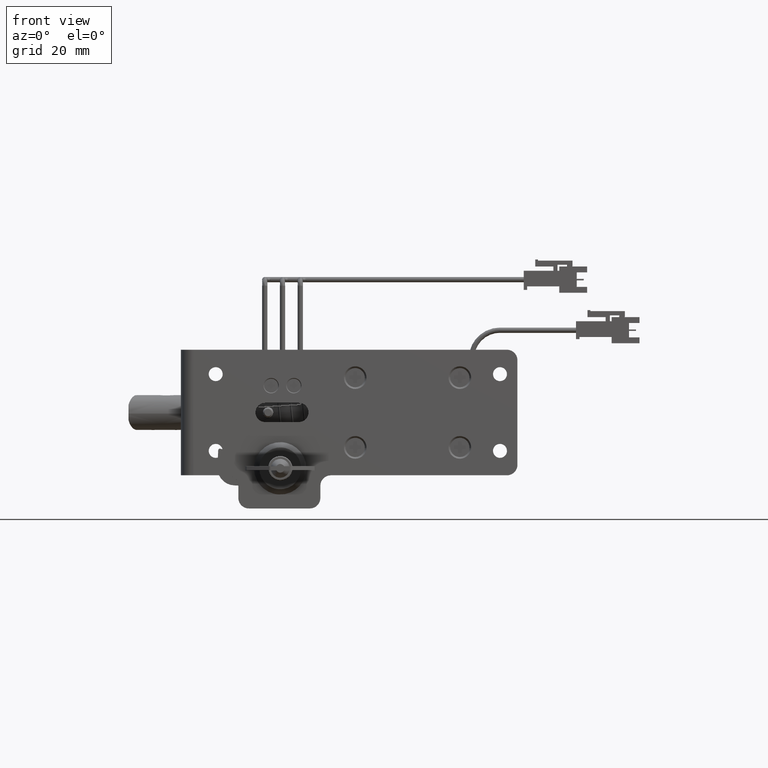
[diagram: clean part render]
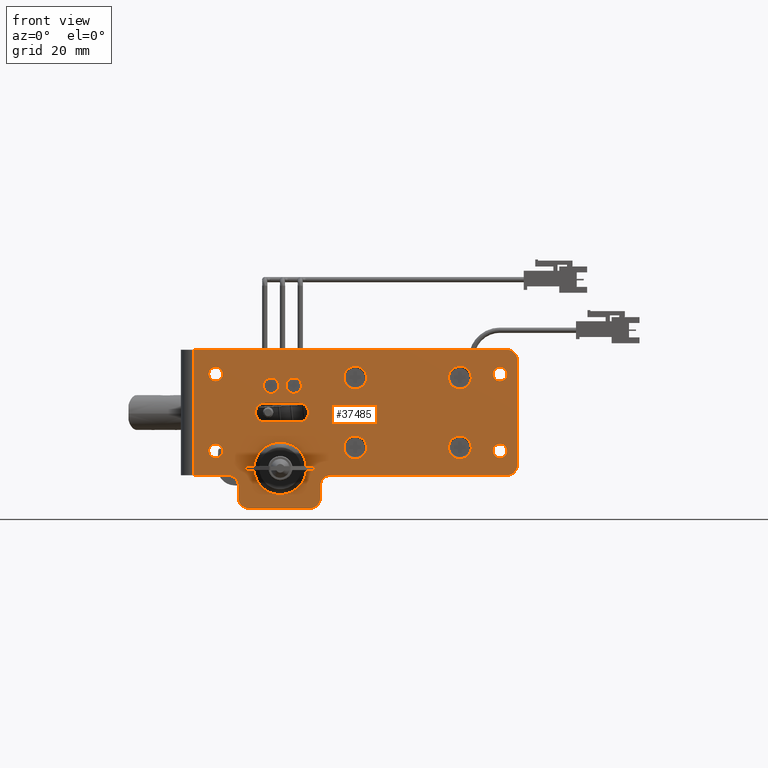
[diagram: same view with one face highlighted and labeled with its STEP entity id]
A machine part, front view. The second image highlights one B-rep face of the part: STEP entity #37485.
In plain terms, the highlighted face is a freeform B-spline surface patch.
Its self-contained STEP definition (entity closure, byte-faithful):
#32496=CARTESIAN_POINT('',(-0.404103443427767,-7.718214E-011,23.565693212445609));
#32497=VERTEX_POINT('',#32496);
#32503=CARTESIAN_POINT('',(-2.600000000000935,0.0,25.900000000003072));
#32504=VERTEX_POINT('',#32503);
#32505=CARTESIAN_POINT('',(-0.404103443427767,-7.718214E-011,23.565693212445616));
#32506=CARTESIAN_POINT('',(-0.399999999921941,-7.607299E-011,23.632783920451157));
#32507=CARTESIAN_POINT('',(-0.399999999923118,-7.489392E-011,23.699999999995420));
#32508=CARTESIAN_POINT('',(-0.399999999961636,-3.630285E-011,25.900000000000851));
#32509=CARTESIAN_POINT('',(-2.600000000000935,0.0,25.900000000003072));
#32517=(BOUNDED_CURVE()B_SPLINE_CURVE(2,(#32505,#32506,#32507,#32508,#32509),.UNSPECIFIED.,.F.,.U.)B_SPLINE_CURVE_WITH_KNOTS((3,2,3),(0.239332962196959,0.250000000000000,0.500000000000000),.UNSPECIFIED.)CURVE()GEOMETRIC_REPRESENTATION_ITEM()RATIONAL_B_SPLINE_CURVE((0.976072041576738,0.987502787850650,1.0,0.707106781186547,1.0))REPRESENTATION_ITEM(''));
#32518=EDGE_CURVE('',#32497,#32504,#32517,.T.);
#32520=CARTESIAN_POINT('',(-4.795896556574103,-7.718227E-011,23.834306787554389));
#32521=VERTEX_POINT('',#32520);
#32522=CARTESIAN_POINT('',(-2.600000000000935,0.0,25.900000000003072));
#32523=CARTESIAN_POINT('',(-4.669553346694009,-3.859113E-011,25.900000000005416));
#32524=CARTESIAN_POINT('',(-4.795896556574103,-7.718227E-011,23.834306787554389));
#32532=(BOUNDED_CURVE()B_SPLINE_CURVE(2,(#32522,#32523,#32524),.UNSPECIFIED.,.F.,.U.)B_SPLINE_CURVE_WITH_KNOTS((3,3),(0.500000000000000,0.739332962196959),.UNSPECIFIED.)CURVE()GEOMETRIC_REPRESENTATION_ITEM()RATIONAL_B_SPLINE_CURVE((1.0,0.719603993335897,0.976072041576739))REPRESENTATION_ITEM(''));
#32533=EDGE_CURVE('',#32504,#32521,#32532,.T.);
#32565=CARTESIAN_POINT('',(-2.600000000000935,0.0,21.499999999996930));
#32566=VERTEX_POINT('',#32565);
#32567=CARTESIAN_POINT('',(-4.795896556574103,-7.718227E-011,23.834306787554389));
#32568=CARTESIAN_POINT('',(-4.800000000079928,-7.607311E-011,23.767216079548831));
#32569=CARTESIAN_POINT('',(-4.800000000078753,-7.489405E-011,23.700000000004572));
#32570=CARTESIAN_POINT('',(-4.800000000040235,-3.630291E-011,21.499999999999151));
#32571=CARTESIAN_POINT('',(-2.600000000000935,0.0,21.499999999996930));
#32579=(BOUNDED_CURVE()B_SPLINE_CURVE(2,(#32567,#32568,#32569,#32570,#32571),.UNSPECIFIED.,.F.,.U.)B_SPLINE_CURVE_WITH_KNOTS((3,2,3),(0.739332962196959,0.750000000000000,1.0),.UNSPECIFIED.)CURVE()GEOMETRIC_REPRESENTATION_ITEM()RATIONAL_B_SPLINE_CURVE((0.976072041576739,0.987502787850651,1.0,0.707106781186547,1.0))REPRESENTATION_ITEM(''));
#32580=EDGE_CURVE('',#32521,#32566,#32579,.T.);
#32582=CARTESIAN_POINT('',(-2.600000000000935,0.0,21.499999999996930));
#32583=CARTESIAN_POINT('',(-0.530446653307860,-3.859107E-011,21.499999999994586));
#32584=CARTESIAN_POINT('',(-0.404103443427767,-7.718214E-011,23.565693212445609));
#32592=(BOUNDED_CURVE()B_SPLINE_CURVE(2,(#32582,#32583,#32584),.UNSPECIFIED.,.F.,.U.)B_SPLINE_CURVE_WITH_KNOTS((3,3),(0.0,0.239332962196959),.UNSPECIFIED.)CURVE()GEOMETRIC_REPRESENTATION_ITEM()RATIONAL_B_SPLINE_CURVE((1.0,0.719603993335897,0.976072041576739))REPRESENTATION_ITEM(''));
#32593=EDGE_CURVE('',#32566,#32497,#32592,.T.);
#32740=CARTESIAN_POINT('',(6.095896556572237,-7.718213E-011,23.565693212445609));
#32741=VERTEX_POINT('',#32740);
#32747=CARTESIAN_POINT('',(3.899999999999070,0.0,25.900000000003072));
#32748=VERTEX_POINT('',#32747);
#32749=CARTESIAN_POINT('',(6.095896556572237,-7.718213E-011,23.565693212445606));
#32750=CARTESIAN_POINT('',(6.100000000078062,-7.607297E-011,23.632783920451157));
#32751=CARTESIAN_POINT('',(6.100000000076885,-7.489391E-011,23.699999999995420));
#32752=CARTESIAN_POINT('',(6.100000000038368,-3.630285E-011,25.900000000000851));
#32753=CARTESIAN_POINT('',(3.899999999999070,0.0,25.900000000003072));
#32761=(BOUNDED_CURVE()B_SPLINE_CURVE(2,(#32749,#32750,#32751,#32752,#32753),.UNSPECIFIED.,.F.,.U.)B_SPLINE_CURVE_WITH_KNOTS((3,2,3),(0.239332962196959,0.250000000000000,0.500000000000000),.UNSPECIFIED.)CURVE()GEOMETRIC_REPRESENTATION_ITEM()RATIONAL_B_SPLINE_CURVE((0.976072041576738,0.987502787850650,1.0,0.707106781186547,1.0))REPRESENTATION_ITEM(''));
#32762=EDGE_CURVE('',#32741,#32748,#32761,.T.);
#32764=CARTESIAN_POINT('',(1.704103443425902,-7.718214E-011,23.834306787554389));
#32765=VERTEX_POINT('',#32764);
#32766=CARTESIAN_POINT('',(3.899999999999070,0.0,25.900000000003072));
#32767=CARTESIAN_POINT('',(1.830446653305996,-3.859107E-011,25.900000000005416));
#32768=CARTESIAN_POINT('',(1.704103443425902,-7.718214E-011,23.834306787554389));
#32776=(BOUNDED_CURVE()B_SPLINE_CURVE(2,(#32766,#32767,#32768),.UNSPECIFIED.,.F.,.U.)B_SPLINE_CURVE_WITH_KNOTS((3,3),(0.500000000000000,0.739332962196959),.UNSPECIFIED.)CURVE()GEOMETRIC_REPRESENTATION_ITEM()RATIONAL_B_SPLINE_CURVE((1.0,0.719603993335897,0.976072041576739))REPRESENTATION_ITEM(''));
#32777=EDGE_CURVE('',#32748,#32765,#32776,.T.);
#32809=CARTESIAN_POINT('',(3.899999999999070,0.0,21.499999999996930));
#32810=VERTEX_POINT('',#32809);
#32811=CARTESIAN_POINT('',(1.704103443425902,-7.718214E-011,23.834306787554389));
#32812=CARTESIAN_POINT('',(1.699999999920077,-7.607299E-011,23.767216079548831));
#32813=CARTESIAN_POINT('',(1.699999999921254,-7.489392E-011,23.700000000004572));
#32814=CARTESIAN_POINT('',(1.699999999959772,-3.630285E-011,21.499999999999151));
#32815=CARTESIAN_POINT('',(3.899999999999070,0.0,21.499999999996930));
#32823=(BOUNDED_CURVE()B_SPLINE_CURVE(2,(#32811,#32812,#32813,#32814,#32815),.UNSPECIFIED.,.F.,.U.)B_SPLINE_CURVE_WITH_KNOTS((3,2,3),(0.739332962196959,0.750000000000000,1.0),.UNSPECIFIED.)CURVE()GEOMETRIC_REPRESENTATION_ITEM()RATIONAL_B_SPLINE_CURVE((0.976072041576739,0.987502787850651,1.0,0.707106781186547,1.0))REPRESENTATION_ITEM(''));
#32824=EDGE_CURVE('',#32765,#32810,#32823,.T.);
#32826=CARTESIAN_POINT('',(3.899999999999070,0.0,21.499999999996930));
#32827=CARTESIAN_POINT('',(5.969553346692144,-3.859106E-011,21.499999999994571));
#32828=CARTESIAN_POINT('',(6.095896556572237,-7.718213E-011,23.565693212445609));
#32836=(BOUNDED_CURVE()B_SPLINE_CURVE(2,(#32826,#32827,#32828),.UNSPECIFIED.,.F.,.U.)B_SPLINE_CURVE_WITH_KNOTS((3,3),(0.0,0.239332962196959),.UNSPECIFIED.)CURVE()GEOMETRIC_REPRESENTATION_ITEM()RATIONAL_B_SPLINE_CURVE((1.0,0.719603993335897,0.976072041576739))REPRESENTATION_ITEM(''));
#32837=EDGE_CURVE('',#32810,#32741,#32836,.T.);
#32984=CARTESIAN_POINT('',(24.743938094995212,-3.609064E-010,5.801592243761517));
#32985=VERTEX_POINT('',#32984);
#32991=CARTESIAN_POINT('',(21.499999999999499,0.0,9.249999999931401));
#32992=VERTEX_POINT('',#32991);
#32993=CARTESIAN_POINT('',(24.743938094995212,-3.609064E-010,5.801592243761517));
#32994=CARTESIAN_POINT('',(24.750000000285958,-3.557200E-010,5.900703517889959));
#32995=CARTESIAN_POINT('',(24.750000000280458,-3.502066E-010,5.999999999978620));
#32996=CARTESIAN_POINT('',(24.750000000100343,-1.697534E-010,9.249999999921037));
#32997=CARTESIAN_POINT('',(21.499999999999499,0.0,9.249999999931401));
#33005=(BOUNDED_CURVE()B_SPLINE_CURVE(2,(#32993,#32994,#32995,#32996,#32997),.UNSPECIFIED.,.F.,.U.)B_SPLINE_CURVE_WITH_KNOTS((3,2,3),(0.239332962096633,0.250000000000000,0.500000000000000),.UNSPECIFIED.)CURVE()GEOMETRIC_REPRESENTATION_ITEM()RATIONAL_B_SPLINE_CURVE((0.976072041361721,0.987502787733111,1.0,0.707106781186547,1.0))REPRESENTATION_ITEM(''));
#33006=EDGE_CURVE('',#32985,#32992,#33005,.T.);
#33008=CARTESIAN_POINT('',(18.256061905003790,-3.609067E-010,6.198407756238483));
#33009=VERTEX_POINT('',#33008);
#33010=CARTESIAN_POINT('',(21.499999999999499,0.0,9.249999999931401));
#33011=CARTESIAN_POINT('',(18.442705285020359,-1.804533E-010,9.249999999942419));
#33012=CARTESIAN_POINT('',(18.256061905003790,-3.609067E-010,6.198407756238483));
#33020=(BOUNDED_CURVE()B_SPLINE_CURVE(2,(#33010,#33011,#33012),.UNSPECIFIED.,.F.,.U.)B_SPLINE_CURVE_WITH_KNOTS((3,3),(0.500000000000000,0.739332962096633),.UNSPECIFIED.)CURVE()GEOMETRIC_REPRESENTATION_ITEM()RATIONAL_B_SPLINE_CURVE((1.0,0.719603993453437,0.976072041361721))REPRESENTATION_ITEM(''));
#33021=EDGE_CURVE('',#32992,#33009,#33020,.T.);
#33053=CARTESIAN_POINT('',(21.499999999999499,0.0,2.750000000068600));
#33054=VERTEX_POINT('',#33053);
#33055=CARTESIAN_POINT('',(18.256061905003790,-3.609067E-010,6.198407756238483));
#33056=CARTESIAN_POINT('',(18.249999999713047,-3.557202E-010,6.099296482110041));
#33057=CARTESIAN_POINT('',(18.249999999718550,-3.502069E-010,6.000000000021380));
#33058=CARTESIAN_POINT('',(18.249999999898670,-1.697536E-010,2.750000000078963));
#33059=CARTESIAN_POINT('',(21.499999999999499,0.0,2.750000000068600));
#33067=(BOUNDED_CURVE()B_SPLINE_CURVE(2,(#33055,#33056,#33057,#33058,#33059),.UNSPECIFIED.,.F.,.U.)B_SPLINE_CURVE_WITH_KNOTS((3,2,3),(0.739332962096633,0.750000000000000,1.0),.UNSPECIFIED.)CURVE()GEOMETRIC_REPRESENTATION_ITEM()RATIONAL_B_SPLINE_CURVE((0.976072041361721,0.987502787733111,1.0,0.707106781186547,1.0))REPRESENTATION_ITEM(''));
#33068=EDGE_CURVE('',#33009,#33054,#33067,.T.);
#33070=CARTESIAN_POINT('',(21.499999999999499,0.0,2.750000000068600));
#33071=CARTESIAN_POINT('',(24.557294714978639,-1.804532E-010,2.750000000057584));
#33072=CARTESIAN_POINT('',(24.743938094995212,-3.609064E-010,5.801592243761517));
#33080=(BOUNDED_CURVE()B_SPLINE_CURVE(2,(#33070,#33071,#33072),.UNSPECIFIED.,.F.,.U.)B_SPLINE_CURVE_WITH_KNOTS((3,3),(0.0,0.239332962096633),.UNSPECIFIED.)CURVE()GEOMETRIC_REPRESENTATION_ITEM()RATIONAL_B_SPLINE_CURVE((1.0,0.719603993453437,0.976072041361721))REPRESENTATION_ITEM(''));
#33081=EDGE_CURVE('',#33054,#32985,#33080,.T.);
#33228=CARTESIAN_POINT('',(24.743938094995212,-3.609056E-010,25.801592243761519));
#33229=VERTEX_POINT('',#33228);
#33235=CARTESIAN_POINT('',(21.499999999999499,0.0,29.249999999931401));
#33236=VERTEX_POINT('',#33235);
#33237=CARTESIAN_POINT('',(24.743938094995205,-3.609056E-010,25.801592243761522));
#33238=CARTESIAN_POINT('',(24.750000000285954,-3.557192E-010,25.900703517889959));
#33239=CARTESIAN_POINT('',(24.750000000280451,-3.502059E-010,25.999999999978620));
#33240=CARTESIAN_POINT('',(24.750000000100343,-1.697530E-010,29.249999999921041));
#33241=CARTESIAN_POINT('',(21.499999999999499,0.0,29.249999999931401));
#33249=(BOUNDED_CURVE()B_SPLINE_CURVE(2,(#33237,#33238,#33239,#33240,#33241),.UNSPECIFIED.,.F.,.U.)B_SPLINE_CURVE_WITH_KNOTS((3,2,3),(0.239332962096633,0.250000000000000,0.500000000000000),.UNSPECIFIED.)CURVE()GEOMETRIC_REPRESENTATION_ITEM()RATIONAL_B_SPLINE_CURVE((0.976072041361721,0.987502787733111,1.0,0.707106781186547,1.0))REPRESENTATION_ITEM(''));
#33250=EDGE_CURVE('',#33229,#33236,#33249,.T.);
#33252=CARTESIAN_POINT('',(18.256061905003790,-3.609059E-010,26.198407756238488));
#33253=VERTEX_POINT('',#33252);
#33254=CARTESIAN_POINT('',(21.499999999999499,0.0,29.249999999931401));
#33255=CARTESIAN_POINT('',(18.442705285020370,-1.804529E-010,29.249999999942411));
#33256=CARTESIAN_POINT('',(18.256061905003794,-3.609059E-010,26.198407756238488));
#33264=(BOUNDED_CURVE()B_SPLINE_CURVE(2,(#33254,#33255,#33256),.UNSPECIFIED.,.F.,.U.)B_SPLINE_CURVE_WITH_KNOTS((3,3),(0.500000000000000,0.739332962096633),.UNSPECIFIED.)CURVE()GEOMETRIC_REPRESENTATION_ITEM()RATIONAL_B_SPLINE_CURVE((1.0,0.719603993453437,0.976072041361720))REPRESENTATION_ITEM(''));
#33265=EDGE_CURVE('',#33236,#33253,#33264,.T.);
#33297=CARTESIAN_POINT('',(21.499999999999499,0.0,22.750000000068599));
#33298=VERTEX_POINT('',#33297);
#33299=CARTESIAN_POINT('',(18.256061905003794,-3.609059E-010,26.198407756238488));
#33300=CARTESIAN_POINT('',(18.249999999713040,-3.557194E-010,26.099296482110045));
#33301=CARTESIAN_POINT('',(18.249999999718540,-3.502061E-010,26.000000000021380));
#33302=CARTESIAN_POINT('',(18.249999999898670,-1.697532E-010,22.750000000078963));
#33303=CARTESIAN_POINT('',(21.499999999999499,0.0,22.750000000068599));
#33311=(BOUNDED_CURVE()B_SPLINE_CURVE(2,(#33299,#33300,#33301,#33302,#33303),.UNSPECIFIED.,.F.,.U.)B_SPLINE_CURVE_WITH_KNOTS((3,2,3),(0.739332962096633,0.750000000000000,1.0),.UNSPECIFIED.)CURVE()GEOMETRIC_REPRESENTATION_ITEM()RATIONAL_B_SPLINE_CURVE((0.976072041361720,0.987502787733111,1.0,0.707106781186547,1.0))REPRESENTATION_ITEM(''));
#33312=EDGE_CURVE('',#33253,#33298,#33311,.T.);
#33314=CARTESIAN_POINT('',(21.499999999999499,0.0,22.750000000068599));
#33315=CARTESIAN_POINT('',(24.557294714978646,-1.804528E-010,22.750000000057579));
#33316=CARTESIAN_POINT('',(24.743938094995212,-3.609056E-010,25.801592243761515));
#33324=(BOUNDED_CURVE()B_SPLINE_CURVE(2,(#33314,#33315,#33316),.UNSPECIFIED.,.F.,.U.)B_SPLINE_CURVE_WITH_KNOTS((3,3),(0.0,0.239332962096633),.UNSPECIFIED.)CURVE()GEOMETRIC_REPRESENTATION_ITEM()RATIONAL_B_SPLINE_CURVE((1.0,0.719603993453436,0.976072041361721))REPRESENTATION_ITEM(''));
#33325=EDGE_CURVE('',#33298,#33229,#33324,.T.);
#33472=CARTESIAN_POINT('',(54.743938094995123,-3.609087E-010,5.801592243761517));
#33473=VERTEX_POINT('',#33472);
#33479=CARTESIAN_POINT('',(51.499999999999403,0.0,9.249999999931401));
#33480=VERTEX_POINT('',#33479);
#33481=CARTESIAN_POINT('',(54.743938094995116,-3.609087E-010,5.801592243761517));
#33482=CARTESIAN_POINT('',(54.750000000285858,-3.557222E-010,5.900703517889959));
#33483=CARTESIAN_POINT('',(54.750000000280359,-3.502089E-010,5.999999999978620));
#33484=CARTESIAN_POINT('',(54.750000000100229,-1.697545E-010,9.249999999921037));
#33485=CARTESIAN_POINT('',(51.499999999999403,0.0,9.249999999931401));
#33493=(BOUNDED_CURVE()B_SPLINE_CURVE(2,(#33481,#33482,#33483,#33484,#33485),.UNSPECIFIED.,.F.,.U.)B_SPLINE_CURVE_WITH_KNOTS((3,2,3),(0.239332962096633,0.250000000000000,0.500000000000000),.UNSPECIFIED.)CURVE()GEOMETRIC_REPRESENTATION_ITEM()RATIONAL_B_SPLINE_CURVE((0.976072041361721,0.987502787733111,1.0,0.707106781186547,1.0))REPRESENTATION_ITEM(''));
#33494=EDGE_CURVE('',#33473,#33480,#33493,.T.);
#33496=CARTESIAN_POINT('',(48.256061905003691,-3.609100E-010,6.198407756238485));
#33497=VERTEX_POINT('',#33496);
#33498=CARTESIAN_POINT('',(51.499999999999403,0.0,9.249999999931401));
#33499=CARTESIAN_POINT('',(48.442705285020274,-1.804550E-010,9.249999999942418));
#33500=CARTESIAN_POINT('',(48.256061905003691,-3.609100E-010,6.198407756238485));
#33508=(BOUNDED_CURVE()B_SPLINE_CURVE(2,(#33498,#33499,#33500),.UNSPECIFIED.,.F.,.U.)B_SPLINE_CURVE_WITH_KNOTS((3,3),(0.500000000000000,0.739332962096633),.UNSPECIFIED.)CURVE()GEOMETRIC_REPRESENTATION_ITEM()RATIONAL_B_SPLINE_CURVE((1.0,0.719603993453437,0.976072041361720))REPRESENTATION_ITEM(''));
#33509=EDGE_CURVE('',#33480,#33497,#33508,.T.);
#33541=CARTESIAN_POINT('',(51.499999999999403,0.0,2.750000000068600));
#33542=VERTEX_POINT('',#33541);
#33543=CARTESIAN_POINT('',(48.256061905003691,-3.609100E-010,6.198407756238485));
#33544=CARTESIAN_POINT('',(48.249999999712941,-3.557236E-010,6.099296482110042));
#33545=CARTESIAN_POINT('',(48.249999999718447,-3.502102E-010,6.000000000021380));
#33546=CARTESIAN_POINT('',(48.249999999898563,-1.697551E-010,2.750000000078963));
#33547=CARTESIAN_POINT('',(51.499999999999403,0.0,2.750000000068600));
#33555=(BOUNDED_CURVE()B_SPLINE_CURVE(2,(#33543,#33544,#33545,#33546,#33547),.UNSPECIFIED.,.F.,.U.)B_SPLINE_CURVE_WITH_KNOTS((3,2,3),(0.739332962096633,0.750000000000000,1.0),.UNSPECIFIED.)CURVE()GEOMETRIC_REPRESENTATION_ITEM()RATIONAL_B_SPLINE_CURVE((0.976072041361720,0.987502787733111,1.0,0.707106781186547,1.0))REPRESENTATION_ITEM(''));
#33556=EDGE_CURVE('',#33497,#33542,#33555,.T.);
#33558=CARTESIAN_POINT('',(51.499999999999403,0.0,2.750000000068600));
#33559=CARTESIAN_POINT('',(54.557294714978553,-1.804544E-010,2.750000000057584));
#33560=CARTESIAN_POINT('',(54.743938094995116,-3.609087E-010,5.801592243761517));
#33568=(BOUNDED_CURVE()B_SPLINE_CURVE(2,(#33558,#33559,#33560),.UNSPECIFIED.,.F.,.U.)B_SPLINE_CURVE_WITH_KNOTS((3,3),(0.0,0.239332962096633),.UNSPECIFIED.)CURVE()GEOMETRIC_REPRESENTATION_ITEM()RATIONAL_B_SPLINE_CURVE((1.0,0.719603993453437,0.976072041361721))REPRESENTATION_ITEM(''));
#33569=EDGE_CURVE('',#33542,#33473,#33568,.T.);
#33716=CARTESIAN_POINT('',(54.743938094995109,-3.609070E-010,25.801592243761519));
#33717=VERTEX_POINT('',#33716);
#33723=CARTESIAN_POINT('',(51.499999999999403,0.0,29.249999999931401));
#33724=VERTEX_POINT('',#33723);
#33725=CARTESIAN_POINT('',(54.743938094995109,-3.609070E-010,25.801592243761522));
#33726=CARTESIAN_POINT('',(54.750000000285851,-3.557205E-010,25.900703517889959));
#33727=CARTESIAN_POINT('',(54.750000000280352,-3.502072E-010,25.999999999978620));
#33728=CARTESIAN_POINT('',(54.750000000100229,-1.697537E-010,29.249999999921041));
#33729=CARTESIAN_POINT('',(51.499999999999403,0.0,29.249999999931401));
#33737=(BOUNDED_CURVE()B_SPLINE_CURVE(2,(#33725,#33726,#33727,#33728,#33729),.UNSPECIFIED.,.F.,.U.)B_SPLINE_CURVE_WITH_KNOTS((3,2,3),(0.239332962096633,0.250000000000000,0.500000000000000),.UNSPECIFIED.)CURVE()GEOMETRIC_REPRESENTATION_ITEM()RATIONAL_B_SPLINE_CURVE((0.976072041361721,0.987502787733111,1.0,0.707106781186547,1.0))REPRESENTATION_ITEM(''));
#33738=EDGE_CURVE('',#33717,#33724,#33737,.T.);
#33740=CARTESIAN_POINT('',(48.256061905003691,-3.609082E-010,26.198407756238488));
#33741=VERTEX_POINT('',#33740);
#33742=CARTESIAN_POINT('',(51.499999999999403,0.0,29.249999999931401));
#33743=CARTESIAN_POINT('',(48.442705285020274,-1.804541E-010,29.249999999942411));
#33744=CARTESIAN_POINT('',(48.256061905003691,-3.609082E-010,26.198407756238488));
#33752=(BOUNDED_CURVE()B_SPLINE_CURVE(2,(#33742,#33743,#33744),.UNSPECIFIED.,.F.,.U.)B_SPLINE_CURVE_WITH_KNOTS((3,3),(0.500000000000000,0.739332962096633),.UNSPECIFIED.)CURVE()GEOMETRIC_REPRESENTATION_ITEM()RATIONAL_B_SPLINE_CURVE((1.0,0.719603993453437,0.976072041361720))REPRESENTATION_ITEM(''));
#33753=EDGE_CURVE('',#33724,#33741,#33752,.T.);
#33785=CARTESIAN_POINT('',(51.499999999999403,0.0,22.750000000068599));
#33786=VERTEX_POINT('',#33785);
#33787=CARTESIAN_POINT('',(48.256061905003676,-3.609082E-010,26.198407756238485));
#33788=CARTESIAN_POINT('',(48.249999999712941,-3.557217E-010,26.099296482110049));
#33789=CARTESIAN_POINT('',(48.249999999718447,-3.502084E-010,26.000000000021380));
#33790=CARTESIAN_POINT('',(48.249999999898563,-1.697543E-010,22.750000000078963));
#33791=CARTESIAN_POINT('',(51.499999999999403,0.0,22.750000000068599));
#33799=(BOUNDED_CURVE()B_SPLINE_CURVE(2,(#33787,#33788,#33789,#33790,#33791),.UNSPECIFIED.,.F.,.U.)B_SPLINE_CURVE_WITH_KNOTS((3,2,3),(0.739332962096633,0.750000000000000,1.0),.UNSPECIFIED.)CURVE()GEOMETRIC_REPRESENTATION_ITEM()RATIONAL_B_SPLINE_CURVE((0.976072041361720,0.987502787733111,1.0,0.707106781186547,1.0))REPRESENTATION_ITEM(''));
#33800=EDGE_CURVE('',#33741,#33786,#33799,.T.);
#33802=CARTESIAN_POINT('',(51.499999999999403,0.0,22.750000000068599));
#33803=CARTESIAN_POINT('',(54.557294714978525,-1.804535E-010,22.750000000057582));
#33804=CARTESIAN_POINT('',(54.743938094995109,-3.609070E-010,25.801592243761522));
#33812=(BOUNDED_CURVE()B_SPLINE_CURVE(2,(#33802,#33803,#33804),.UNSPECIFIED.,.F.,.U.)B_SPLINE_CURVE_WITH_KNOTS((3,3),(0.0,0.239332962096633),.UNSPECIFIED.)CURVE()GEOMETRIC_REPRESENTATION_ITEM()RATIONAL_B_SPLINE_CURVE((1.0,0.719603993453437,0.976072041361720))REPRESENTATION_ITEM(''));
#33813=EDGE_CURVE('',#33786,#33717,#33812,.T.);
#34344=CARTESIAN_POINT('',(61.003730403191547,6.938894E-018,5.122097079643987));
#34345=VERTEX_POINT('',#34344);
#34351=CARTESIAN_POINT('',(63.0,0.0,2.999999999997330));
#34352=VERTEX_POINT('',#34351);
#34353=CARTESIAN_POINT('',(61.003730403191547,0.0,5.122097079643987));
#34354=CARTESIAN_POINT('',(61.0,0.0,5.061105526883787));
#34355=CARTESIAN_POINT('',(61.0,0.0,4.999999999997330));
#34356=CARTESIAN_POINT('',(60.999999999999993,0.0,2.999999999997331));
#34357=CARTESIAN_POINT('',(63.0,0.0,2.999999999997330));
#34365=(BOUNDED_CURVE()B_SPLINE_CURVE(2,(#34353,#34354,#34355,#34356,#34357),.UNSPECIFIED.,.F.,.U.)B_SPLINE_CURVE_WITH_KNOTS((3,2,3),(0.239332962192101,0.250000000000000,0.500000000000000),.UNSPECIFIED.)CURVE()GEOMETRIC_REPRESENTATION_ITEM()RATIONAL_B_SPLINE_CURVE((0.976072041566326,0.987502787844958,1.0,0.707106781186548,1.0))REPRESENTATION_ITEM(''));
#34366=EDGE_CURVE('',#34345,#34352,#34365,.T.);
#34368=CARTESIAN_POINT('',(64.996269596808446,6.938894E-018,4.877902920350674));
#34369=VERTEX_POINT('',#34368);
#34370=CARTESIAN_POINT('',(63.0,0.0,2.999999999997330));
#34371=CARTESIAN_POINT('',(64.881412133266650,0.0,2.999999999997330));
#34372=CARTESIAN_POINT('',(64.996269596808446,0.0,4.877902920350674));
#34380=(BOUNDED_CURVE()B_SPLINE_CURVE(2,(#34370,#34371,#34372),.UNSPECIFIED.,.F.,.U.)B_SPLINE_CURVE_WITH_KNOTS((3,3),(0.500000000000000,0.739332962192101),.UNSPECIFIED.)CURVE()GEOMETRIC_REPRESENTATION_ITEM()RATIONAL_B_SPLINE_CURVE((1.0,0.719603993341589,0.976072041566326))REPRESENTATION_ITEM(''));
#34381=EDGE_CURVE('',#34352,#34369,#34380,.T.);
#34455=CARTESIAN_POINT('',(63.0,0.0,6.999999999997330));
#34456=VERTEX_POINT('',#34455);
#34457=CARTESIAN_POINT('',(64.996269596808446,0.0,4.877902920350674));
#34458=CARTESIAN_POINT('',(65.0,0.0,4.938894473110873));
#34459=CARTESIAN_POINT('',(65.0,0.0,4.999999999997330));
#34460=CARTESIAN_POINT('',(65.0,0.0,6.999999999997330));
#34461=CARTESIAN_POINT('',(63.0,0.0,6.999999999997330));
#34469=(BOUNDED_CURVE()B_SPLINE_CURVE(2,(#34457,#34458,#34459,#34460,#34461),.UNSPECIFIED.,.F.,.U.)B_SPLINE_CURVE_WITH_KNOTS((3,2,3),(0.739332962192101,0.750000000000000,1.0),.UNSPECIFIED.)CURVE()GEOMETRIC_REPRESENTATION_ITEM()RATIONAL_B_SPLINE_CURVE((0.976072041566326,0.987502787844958,1.0,0.707106781186548,1.0))REPRESENTATION_ITEM(''));
#34470=EDGE_CURVE('',#34369,#34456,#34469,.T.);
#34472=CARTESIAN_POINT('',(63.0,0.0,6.999999999997330));
#34473=CARTESIAN_POINT('',(61.118587866733378,0.0,6.999999999997331));
#34474=CARTESIAN_POINT('',(61.003730403191547,0.0,5.122097079643987));
#34482=(BOUNDED_CURVE()B_SPLINE_CURVE(2,(#34472,#34473,#34474),.UNSPECIFIED.,.F.,.U.)B_SPLINE_CURVE_WITH_KNOTS((3,3),(0.0,0.239332962192101),.UNSPECIFIED.)CURVE()GEOMETRIC_REPRESENTATION_ITEM()RATIONAL_B_SPLINE_CURVE((1.0,0.719603993341590,0.976072041566326))REPRESENTATION_ITEM(''));
#34483=EDGE_CURVE('',#34456,#34345,#34482,.T.);
#34526=CARTESIAN_POINT('',(-20.496269596808450,6.938894E-018,27.122097079646661));
#34527=VERTEX_POINT('',#34526);
#34533=CARTESIAN_POINT('',(-18.500000000000000,0.0,25.0));
#34534=VERTEX_POINT('',#34533);
#34535=CARTESIAN_POINT('',(-20.496269596808450,0.0,27.122097079646657));
#34536=CARTESIAN_POINT('',(-20.500000000000004,0.0,27.061105526886458));
#34537=CARTESIAN_POINT('',(-20.500000000000000,0.0,27.0));
#34538=CARTESIAN_POINT('',(-20.499999999999993,0.0,25.0));
#34539=CARTESIAN_POINT('',(-18.500000000000000,0.0,25.0));
#34547=(BOUNDED_CURVE()B_SPLINE_CURVE(2,(#34535,#34536,#34537,#34538,#34539),.UNSPECIFIED.,.F.,.U.)B_SPLINE_CURVE_WITH_KNOTS((3,2,3),(0.239332962192101,0.250000000000000,0.500000000000000),.UNSPECIFIED.)CURVE()GEOMETRIC_REPRESENTATION_ITEM()RATIONAL_B_SPLINE_CURVE((0.976072041566326,0.987502787844958,1.0,0.707106781186548,1.0))REPRESENTATION_ITEM(''));
#34548=EDGE_CURVE('',#34527,#34534,#34547,.T.);
#34550=CARTESIAN_POINT('',(-16.503730403191550,6.938894E-018,26.877902920353339));
#34551=VERTEX_POINT('',#34550);
#34552=CARTESIAN_POINT('',(-18.500000000000000,0.0,25.0));
#34553=CARTESIAN_POINT('',(-16.618587866733375,0.0,25.000000000000004));
#34554=CARTESIAN_POINT('',(-16.503730403191550,0.0,26.877902920353336));
#34562=(BOUNDED_CURVE()B_SPLINE_CURVE(2,(#34552,#34553,#34554),.UNSPECIFIED.,.F.,.U.)B_SPLINE_CURVE_WITH_KNOTS((3,3),(0.500000000000000,0.739332962192100),.UNSPECIFIED.)CURVE()GEOMETRIC_REPRESENTATION_ITEM()RATIONAL_B_SPLINE_CURVE((1.0,0.719603993341590,0.976072041566325))REPRESENTATION_ITEM(''));
#34563=EDGE_CURVE('',#34534,#34551,#34562,.T.);
#34637=CARTESIAN_POINT('',(-18.500000000000000,0.0,29.0));
#34638=VERTEX_POINT('',#34637);
#34639=CARTESIAN_POINT('',(-16.503730403191554,0.0,26.877902920353343));
#34640=CARTESIAN_POINT('',(-16.500000000000004,0.0,26.938894473113542));
#34641=CARTESIAN_POINT('',(-16.500000000000000,0.0,27.0));
#34642=CARTESIAN_POINT('',(-16.499999999999993,0.0,29.0));
#34643=CARTESIAN_POINT('',(-18.500000000000000,0.0,29.0));
#34651=(BOUNDED_CURVE()B_SPLINE_CURVE(2,(#34639,#34640,#34641,#34642,#34643),.UNSPECIFIED.,.F.,.U.)B_SPLINE_CURVE_WITH_KNOTS((3,2,3),(0.739332962192100,0.750000000000000,1.0),.UNSPECIFIED.)CURVE()GEOMETRIC_REPRESENTATION_ITEM()RATIONAL_B_SPLINE_CURVE((0.976072041566324,0.987502787844957,1.0,0.707106781186548,1.0))REPRESENTATION_ITEM(''));
#34652=EDGE_CURVE('',#34551,#34638,#34651,.T.);
#34654=CARTESIAN_POINT('',(-18.500000000000000,0.0,29.0));
#34655=CARTESIAN_POINT('',(-20.381412133266625,0.0,29.0));
#34656=CARTESIAN_POINT('',(-20.496269596808443,0.0,27.122097079646654));
#34664=(BOUNDED_CURVE()B_SPLINE_CURVE(2,(#34654,#34655,#34656),.UNSPECIFIED.,.F.,.U.)B_SPLINE_CURVE_WITH_KNOTS((3,3),(0.0,0.239332962192100),.UNSPECIFIED.)CURVE()GEOMETRIC_REPRESENTATION_ITEM()RATIONAL_B_SPLINE_CURVE((1.0,0.719603993341590,0.976072041566325))REPRESENTATION_ITEM(''));
#34665=EDGE_CURVE('',#34638,#34527,#34664,.T.);
#34708=CARTESIAN_POINT('',(-20.496269596808450,6.938894E-018,5.122097079646656));
#34709=VERTEX_POINT('',#34708);
#34715=CARTESIAN_POINT('',(-18.500000000000000,0.0,3.0));
#34716=VERTEX_POINT('',#34715);
#34717=CARTESIAN_POINT('',(-20.496269596808439,0.0,5.122097079646655));
#34718=CARTESIAN_POINT('',(-20.499999999999996,0.0,5.061105526886457));
#34719=CARTESIAN_POINT('',(-20.500000000000000,0.0,5.0));
#34720=CARTESIAN_POINT('',(-20.499999999999993,0.0,3.0));
#34721=CARTESIAN_POINT('',(-18.500000000000000,0.0,3.0));
#34729=(BOUNDED_CURVE()B_SPLINE_CURVE(2,(#34717,#34718,#34719,#34720,#34721),.UNSPECIFIED.,.F.,.U.)B_SPLINE_CURVE_WITH_KNOTS((3,2,3),(0.239332962192101,0.250000000000000,0.500000000000000),.UNSPECIFIED.)CURVE()GEOMETRIC_REPRESENTATION_ITEM()RATIONAL_B_SPLINE_CURVE((0.976072041566326,0.987502787844958,1.0,0.707106781186548,1.0))REPRESENTATION_ITEM(''));
#34730=EDGE_CURVE('',#34709,#34716,#34729,.T.);
#34732=CARTESIAN_POINT('',(-16.503730403191550,6.938894E-018,4.877902920353344));
#34733=VERTEX_POINT('',#34732);
#34734=CARTESIAN_POINT('',(-18.500000000000000,0.0,3.0));
#34735=CARTESIAN_POINT('',(-16.618587866733371,0.0,3.000000000000001));
#34736=CARTESIAN_POINT('',(-16.503730403191554,0.0,4.877902920353345));
#34744=(BOUNDED_CURVE()B_SPLINE_CURVE(2,(#34734,#34735,#34736),.UNSPECIFIED.,.F.,.U.)B_SPLINE_CURVE_WITH_KNOTS((3,3),(0.500000000000000,0.739332962192101),.UNSPECIFIED.)CURVE()GEOMETRIC_REPRESENTATION_ITEM()RATIONAL_B_SPLINE_CURVE((1.0,0.719603993341589,0.976072041566326))REPRESENTATION_ITEM(''));
#34745=EDGE_CURVE('',#34716,#34733,#34744,.T.);
#34819=CARTESIAN_POINT('',(-18.500000000000000,0.0,7.0));
#34820=VERTEX_POINT('',#34819);
#34821=CARTESIAN_POINT('',(-16.503730403191554,0.0,4.877902920353345));
#34822=CARTESIAN_POINT('',(-16.500000000000000,0.0,4.938894473113543));
#34823=CARTESIAN_POINT('',(-16.500000000000000,0.0,5.0));
#34824=CARTESIAN_POINT('',(-16.499999999999993,0.0,6.999999999999999));
#34825=CARTESIAN_POINT('',(-18.500000000000000,0.0,7.0));
#34833=(BOUNDED_CURVE()B_SPLINE_CURVE(2,(#34821,#34822,#34823,#34824,#34825),.UNSPECIFIED.,.F.,.U.)B_SPLINE_CURVE_WITH_KNOTS((3,2,3),(0.739332962192101,0.750000000000000,1.0),.UNSPECIFIED.)CURVE()GEOMETRIC_REPRESENTATION_ITEM()RATIONAL_B_SPLINE_CURVE((0.976072041566326,0.987502787844958,1.0,0.707106781186548,1.0))REPRESENTATION_ITEM(''));
#34834=EDGE_CURVE('',#34733,#34820,#34833,.T.);
#34836=CARTESIAN_POINT('',(-18.500000000000000,0.0,7.0));
#34837=CARTESIAN_POINT('',(-20.381412133266632,0.0,7.000000000000001));
#34838=CARTESIAN_POINT('',(-20.496269596808439,0.0,5.122097079646655));
#34846=(BOUNDED_CURVE()B_SPLINE_CURVE(2,(#34836,#34837,#34838),.UNSPECIFIED.,.F.,.U.)B_SPLINE_CURVE_WITH_KNOTS((3,3),(0.0,0.239332962192101),.UNSPECIFIED.)CURVE()GEOMETRIC_REPRESENTATION_ITEM()RATIONAL_B_SPLINE_CURVE((1.0,0.719603993341589,0.976072041566326))REPRESENTATION_ITEM(''));
#34847=EDGE_CURVE('',#34820,#34709,#34846,.T.);
#34890=CARTESIAN_POINT('',(61.003730403191547,6.938894E-018,27.122097079646661));
#34891=VERTEX_POINT('',#34890);
#34897=CARTESIAN_POINT('',(63.0,0.0,25.0));
#34898=VERTEX_POINT('',#34897);
#34899=CARTESIAN_POINT('',(61.003730403191540,0.0,27.122097079646654));
#34900=CARTESIAN_POINT('',(60.999999999999993,0.0,27.061105526886465));
#34901=CARTESIAN_POINT('',(61.0,0.0,27.0));
#34902=CARTESIAN_POINT('',(60.999999999999993,0.0,25.0));
#34903=CARTESIAN_POINT('',(63.0,0.0,25.0));
#34911=(BOUNDED_CURVE()B_SPLINE_CURVE(2,(#34899,#34900,#34901,#34902,#34903),.UNSPECIFIED.,.F.,.U.)B_SPLINE_CURVE_WITH_KNOTS((3,2,3),(0.239332962192100,0.250000000000000,0.500000000000000),.UNSPECIFIED.)CURVE()GEOMETRIC_REPRESENTATION_ITEM()RATIONAL_B_SPLINE_CURVE((0.976072041566325,0.987502787844958,1.0,0.707106781186548,1.0))REPRESENTATION_ITEM(''));
#34912=EDGE_CURVE('',#34891,#34898,#34911,.T.);
#34914=CARTESIAN_POINT('',(64.996269596808446,6.938894E-018,26.877902920353339));
#34915=VERTEX_POINT('',#34914);
#34916=CARTESIAN_POINT('',(63.0,0.0,25.0));
#34917=CARTESIAN_POINT('',(64.881412133266636,0.0,24.999999999999996));
#34918=CARTESIAN_POINT('',(64.996269596808432,0.0,26.877902920353343));
#34926=(BOUNDED_CURVE()B_SPLINE_CURVE(2,(#34916,#34917,#34918),.UNSPECIFIED.,.F.,.U.)B_SPLINE_CURVE_WITH_KNOTS((3,3),(0.500000000000000,0.739332962192101),.UNSPECIFIED.)CURVE()GEOMETRIC_REPRESENTATION_ITEM()RATIONAL_B_SPLINE_CURVE((1.0,0.719603993341589,0.976072041566326))REPRESENTATION_ITEM(''));
#34927=EDGE_CURVE('',#34898,#34915,#34926,.T.);
#35001=CARTESIAN_POINT('',(63.0,0.0,29.0));
#35002=VERTEX_POINT('',#35001);
#35003=CARTESIAN_POINT('',(64.996269596808446,0.0,26.877902920353343));
#35004=CARTESIAN_POINT('',(65.0,0.0,26.938894473113542));
#35005=CARTESIAN_POINT('',(65.0,0.0,27.0));
#35006=CARTESIAN_POINT('',(65.0,0.0,29.0));
#35007=CARTESIAN_POINT('',(63.0,0.0,29.0));
#35015=(BOUNDED_CURVE()B_SPLINE_CURVE(2,(#35003,#35004,#35005,#35006,#35007),.UNSPECIFIED.,.F.,.U.)B_SPLINE_CURVE_WITH_KNOTS((3,2,3),(0.739332962192100,0.750000000000000,1.0),.UNSPECIFIED.)CURVE()GEOMETRIC_REPRESENTATION_ITEM()RATIONAL_B_SPLINE_CURVE((0.976072041566324,0.987502787844957,1.0,0.707106781186548,1.0))REPRESENTATION_ITEM(''));
#35016=EDGE_CURVE('',#34915,#35002,#35015,.T.);
#35018=CARTESIAN_POINT('',(63.0,0.0,29.0));
#35019=CARTESIAN_POINT('',(61.118587866733364,0.0,28.999999999999996));
#35020=CARTESIAN_POINT('',(61.003730403191568,0.0,27.122097079646661));
#35028=(BOUNDED_CURVE()B_SPLINE_CURVE(2,(#35018,#35019,#35020),.UNSPECIFIED.,.F.,.U.)B_SPLINE_CURVE_WITH_KNOTS((3,3),(0.0,0.239332962192100),.UNSPECIFIED.)CURVE()GEOMETRIC_REPRESENTATION_ITEM()RATIONAL_B_SPLINE_CURVE((1.0,0.719603993341590,0.976072041566325))REPRESENTATION_ITEM(''));
#35029=EDGE_CURVE('',#35002,#34891,#35028,.T.);
#36388=CARTESIAN_POINT('',(5.350000000000310,0.0,13.249999999999259));
#36389=VERTEX_POINT('',#36388);
#36390=CARTESIAN_POINT('',(5.350000000000310,0.0,18.750000000000000));
#36391=VERTEX_POINT('',#36390);
#36392=CARTESIAN_POINT('',(5.350000000000310,0.0,13.249999999999259));
#36393=CARTESIAN_POINT('',(5.642480412899934,0.0,13.249882404463049));
#36394=CARTESIAN_POINT('',(6.249911983415574,0.0,13.347703087480760));
#36395=CARTESIAN_POINT('',(7.015040474857096,0.0,13.756690616174041));
#36396=CARTESIAN_POINT('',(7.617617329231327,0.0,14.374268182459030));
#36397=CARTESIAN_POINT('',(7.974393979957164,0.0,15.061974151159291));
#36398=CARTESIAN_POINT('',(8.111355506204301,0.0,15.751206170948731));
#36399=CARTESIAN_POINT('',(8.095291084781854,0.0,16.406622531934062));
#36400=CARTESIAN_POINT('',(7.939069802751305,0.0,16.999325028146870));
#36401=CARTESIAN_POINT('',(7.587443275684939,0.0,17.657374081016691));
#36402=CARTESIAN_POINT('',(7.036515717565241,0.0,18.236285552824761));
#36403=CARTESIAN_POINT('',(6.227322437202653,0.0,18.655813764097850));
#36404=CARTESIAN_POINT('',(5.642467616476102,0.0,18.750154343007299));
#36405=CARTESIAN_POINT('',(5.350000000000310,0.0,18.750000000000000));
#36406=B_SPLINE_CURVE_WITH_KNOTS('',3,(#36392,#36393,#36394,#36395,#36396,#36397,#36398,#36399,#36400,#36401,#36402,#36403,#36404,#36405),.UNSPECIFIED.,.F.,.U.,(4,1,1,1,1,1,1,1,1,1,1,4),(0.000000756573783,0.877456233375634,1.822397360877546,2.564893980930523,3.442360136288459,4.117405678827095,4.657206248518659,5.399743069051425,5.939713370666790,6.884707828153185,7.762213072116360,8.639596594983235),.UNSPECIFIED.);
#36407=EDGE_CURVE('',#36389,#36391,#36406,.T.);
#36448=CARTESIAN_POINT('',(-4.349999999999509,0.0,13.249999999999300));
#36449=VERTEX_POINT('',#36448);
#36450=CARTESIAN_POINT('',(-4.349999999999509,0.0,13.249999999999300));
#36451=CARTESIAN_POINT('',(5.350000000000310,0.0,13.249999999999259));
#36452=QUASI_UNIFORM_CURVE('',1,(#36450,#36451),.UNSPECIFIED.,.F.,.U.);
#36453=EDGE_CURVE('',#36449,#36389,#36452,.T.);
#36489=CARTESIAN_POINT('',(-4.349999999999509,0.0,18.750000000000000));
#36490=VERTEX_POINT('',#36489);
#36491=CARTESIAN_POINT('',(-4.349999999999509,0.0,18.750000000000000));
#36492=CARTESIAN_POINT('',(-4.597458551346073,0.0,18.750082836150622));
#36493=CARTESIAN_POINT('',(-5.024859048654359,0.0,18.691891425476641));
#36494=CARTESIAN_POINT('',(-5.678750929156141,0.0,18.439729159573439));
#36495=CARTESIAN_POINT('',(-6.329761372830385,0.0,17.981549830524081));
#36496=CARTESIAN_POINT('',(-6.866007490274899,0.0,17.239706619280550));
#36497=CARTESIAN_POINT('',(-7.094230645610044,0.0,16.451812021355231));
#36498=CARTESIAN_POINT('',(-7.109620867272242,0.0,15.819034974700781));
#36499=CARTESIAN_POINT('',(-7.005844783356661,0.0,15.172423052738489));
#36500=CARTESIAN_POINT('',(-6.728228147785785,0.0,14.546296186772951));
#36501=CARTESIAN_POINT('',(-6.203458237626406,0.0,13.922688581581451));
#36502=CARTESIAN_POINT('',(-5.451970690779285,0.0,13.406957361267580));
#36503=CARTESIAN_POINT('',(-4.755050743262707,0.0,13.249371227697569));
#36504=CARTESIAN_POINT('',(-4.349999999999509,0.0,13.249999999999300));
#36505=B_SPLINE_CURVE_WITH_KNOTS('',3,(#36491,#36492,#36493,#36494,#36495,#36496,#36497,#36498,#36499,#36500,#36501,#36502,#36503,#36504),.UNSPECIFIED.,.F.,.U.,(4,1,1,1,1,1,1,1,1,1,1,4),(0.000000756575618,0.742374234182120,1.282384373033422,2.092402538304490,3.104880602540204,3.982406189757445,4.522181048461270,4.994688978941091,5.939713370667545,6.547197509682842,7.424718315661141,8.639596594983102),.UNSPECIFIED.);
#36506=EDGE_CURVE('',#36490,#36449,#36505,.T.);
#36541=CARTESIAN_POINT('',(5.350000000000310,0.0,18.750000000000000));
#36542=CARTESIAN_POINT('',(-4.349999999999509,0.0,18.750000000000000));
#36543=QUASI_UNIFORM_CURVE('',1,(#36541,#36542),.UNSPECIFIED.,.F.,.U.);
#36544=EDGE_CURVE('',#36391,#36490,#36543,.T.);
#36723=CARTESIAN_POINT('',(68.0,0.0,1.0));
#36724=VERTEX_POINT('',#36723);
#36730=CARTESIAN_POINT('',(65.0,0.0,-2.0));
#36731=VERTEX_POINT('',#36730);
#36732=CARTESIAN_POINT('',(65.0,0.0,-2.0));
#36733=CARTESIAN_POINT('',(68.000000000000014,0.0,-2.000000000000000));
#36734=CARTESIAN_POINT('',(68.0,0.0,1.0));
#36742=(BOUNDED_CURVE()B_SPLINE_CURVE(2,(#36732,#36733,#36734),.UNSPECIFIED.,.F.,.U.)CURVE()GEOMETRIC_REPRESENTATION_ITEM()QUASI_UNIFORM_CURVE()RATIONAL_B_SPLINE_CURVE((1.0,0.707106781186548,1.0))REPRESENTATION_ITEM(''));
#36743=EDGE_CURVE('',#36731,#36724,#36742,.T.);
#36784=CARTESIAN_POINT('',(-9.0,0.0,-11.499999999986800));
#36785=VERTEX_POINT('',#36784);
#36791=CARTESIAN_POINT('',(-12.0,0.0,-8.499999999986811));
#36792=VERTEX_POINT('',#36791);
#36793=CARTESIAN_POINT('',(-12.0,0.0,-8.499999999986811));
#36794=CARTESIAN_POINT('',(-12.0,0.0,-11.499999999986807));
#36795=CARTESIAN_POINT('',(-9.0,0.0,-11.499999999986811));
#36803=(BOUNDED_CURVE()B_SPLINE_CURVE(2,(#36793,#36794,#36795),.UNSPECIFIED.,.F.,.U.)CURVE()GEOMETRIC_REPRESENTATION_ITEM()QUASI_UNIFORM_CURVE()RATIONAL_B_SPLINE_CURVE((1.0,0.707106781186548,1.0))REPRESENTATION_ITEM(''));
#36804=EDGE_CURVE('',#36792,#36785,#36803,.T.);
#36845=CARTESIAN_POINT('',(11.499999999999019,0.0,-8.499999999986811));
#36846=VERTEX_POINT('',#36845);
#36852=CARTESIAN_POINT('',(8.499999999999028,0.0,-11.499999999986800));
#36853=VERTEX_POINT('',#36852);
#36854=CARTESIAN_POINT('',(8.499999999999028,0.0,-11.499999999986811));
#36855=CARTESIAN_POINT('',(11.499999999999030,0.0,-11.499999999986807));
#36856=CARTESIAN_POINT('',(11.499999999999030,0.0,-8.499999999986811));
#36864=(BOUNDED_CURVE()B_SPLINE_CURVE(2,(#36854,#36855,#36856),.UNSPECIFIED.,.F.,.U.)CURVE()GEOMETRIC_REPRESENTATION_ITEM()QUASI_UNIFORM_CURVE()RATIONAL_B_SPLINE_CURVE((1.0,0.707106781186548,1.0))REPRESENTATION_ITEM(''));
#36865=EDGE_CURVE('',#36853,#36846,#36864,.T.);
#36906=CARTESIAN_POINT('',(14.499999999999041,0.0,-2.0));
#36907=VERTEX_POINT('',#36906);
#36913=CARTESIAN_POINT('',(11.499999999999019,0.0,-5.0));
#36914=VERTEX_POINT('',#36913);
#36915=CARTESIAN_POINT('',(11.499999999999041,0.0,-5.0));
#36916=CARTESIAN_POINT('',(11.499999999999039,0.0,-2.000000000000000));
#36917=CARTESIAN_POINT('',(14.499999999999041,0.0,-2.0));
#36925=(BOUNDED_CURVE()B_SPLINE_CURVE(2,(#36915,#36916,#36917),.UNSPECIFIED.,.F.,.U.)CURVE()GEOMETRIC_REPRESENTATION_ITEM()QUASI_UNIFORM_CURVE()RATIONAL_B_SPLINE_CURVE((1.0,0.707106781186548,1.0))REPRESENTATION_ITEM(''));
#36926=EDGE_CURVE('',#36914,#36907,#36925,.T.);
#36941=CARTESIAN_POINT('',(-3.019933774109215,0.0,-5.300000000000479));
#36942=VERTEX_POINT('',#36941);
#36943=CARTESIAN_POINT('',(3.019933774109215,0.0,-5.300000000000479));
#36944=VERTEX_POINT('',#36943);
#36945=CARTESIAN_POINT('',(-3.019933774109215,0.0,-5.300000000000479));
#36946=CARTESIAN_POINT('',(3.019933774109215,0.0,-5.300000000000479));
#36947=QUASI_UNIFORM_CURVE('',1,(#36945,#36946),.UNSPECIFIED.,.F.,.U.);
#36948=EDGE_CURVE('',#36942,#36944,#36947,.T.);
#36986=CARTESIAN_POINT('',(-3.019933774107385,0.0,5.299999999999520));
#36987=VERTEX_POINT('',#36986);
#36988=CARTESIAN_POINT('',(-3.019933774107385,0.0,5.299999999999520));
#36989=CARTESIAN_POINT('',(-3.543225000316931,0.0,5.002132205249987));
#36990=CARTESIAN_POINT('',(-4.367276712306519,0.0,4.354077817299245));
#36991=CARTESIAN_POINT('',(-5.344440771289856,0.0,3.068352466817389));
#36992=CARTESIAN_POINT('',(-5.861161856492805,0.0,1.856566386665200));
#36993=CARTESIAN_POINT('',(-6.113367111196492,0.0,0.538732343739253));
#36994=CARTESIAN_POINT('',(-6.113368137757161,0.0,-0.538730842865970));
#36995=CARTESIAN_POINT('',(-5.879996083754378,0.0,-1.757684895720003));
#36996=CARTESIAN_POINT('',(-5.419774005537970,0.0,-2.915497571707883));
#36997=CARTESIAN_POINT('',(-4.495558896923042,0.0,-4.241582483034185));
#36998=CARTESIAN_POINT('',(-3.601457641965426,0.0,-4.969127229235022));
#36999=CARTESIAN_POINT('',(-3.019933774109215,0.0,-5.300000000000479));
#37000=B_SPLINE_CURVE_WITH_KNOTS('',3,(#36988,#36989,#36990,#36991,#36992,#36993,#36994,#36995,#36996,#36997,#36998,#36999),.UNSPECIFIED.,.F.,.U.,(4,1,1,1,1,1,1,1,1,4),(0.000000333728762,1.806326450163896,3.110964840656379,4.817023298469614,5.720228994588526,7.125043254000504,8.028250086594674,9.433249839307697,10.838238933582350,12.845276602993460),.UNSPECIFIED.);
#37001=EDGE_CURVE('',#36987,#36942,#37000,.T.);
#37034=CARTESIAN_POINT('',(3.019933774109215,0.0,5.299999999999520));
#37035=VERTEX_POINT('',#37034);
#37036=CARTESIAN_POINT('',(3.019933774109215,0.0,5.299999999999520));
#37037=CARTESIAN_POINT('',(-3.019933774107385,0.0,5.299999999999520));
#37038=QUASI_UNIFORM_CURVE('',1,(#37036,#37037),.UNSPECIFIED.,.F.,.U.);
#37039=EDGE_CURVE('',#37035,#36987,#37038,.T.);
#37071=CARTESIAN_POINT('',(3.019933774109215,0.0,-5.300000000000479));
#37072=CARTESIAN_POINT('',(3.426841118261610,0.0,-5.068212148262980));
#37073=CARTESIAN_POINT('',(4.241282367226649,0.0,-4.470537247785062));
#37074=CARTESIAN_POINT('',(5.165897894020596,0.0,-3.352450561860609));
#37075=CARTESIAN_POINT('',(5.857201651034814,0.0,-1.930238410208191));
#37076=CARTESIAN_POINT('',(6.155717386592714,0.0,-0.438029459821343));
#37077=CARTESIAN_POINT('',(6.060291799353912,0.0,1.006818895503064));
#37078=CARTESIAN_POINT('',(5.763035579210357,0.0,2.074587628069786));
#37079=CARTESIAN_POINT('',(5.304182746104903,0.0,3.081251737783961));
#37080=CARTESIAN_POINT('',(4.495599185934285,0.0,4.241591279912162));
#37081=CARTESIAN_POINT('',(3.601443764580148,0.0,4.969124300434253));
#37082=CARTESIAN_POINT('',(3.019933774109215,0.0,5.299999999999520));
#37083=B_SPLINE_CURVE_WITH_KNOTS('',3,(#37071,#37072,#37073,#37074,#37075,#37076,#37077,#37078,#37079,#37080,#37081,#37082),.UNSPECIFIED.,.F.,.U.,(4,1,1,1,1,1,1,1,1,4),(0.000000333728114,1.404900469904959,3.010607830750011,4.315244250543186,6.121653761992927,7.526471940527602,8.630419007901088,9.433249839306431,10.838238933581151,12.845276602992181),.UNSPECIFIED.);
#37084=EDGE_CURVE('',#36944,#37035,#37083,.T.);
#37119=CARTESIAN_POINT('',(-12.0,0.0,-5.0));
#37120=VERTEX_POINT('',#37119);
#37121=CARTESIAN_POINT('',(-12.0,0.0,-8.499999999986811));
#37122=CARTESIAN_POINT('',(-12.0,0.0,-5.0));
#37123=QUASI_UNIFORM_CURVE('',1,(#37121,#37122),.UNSPECIFIED.,.F.,.U.);
#37124=EDGE_CURVE('',#36792,#37120,#37123,.T.);
#37145=CARTESIAN_POINT('',(8.499999999999028,0.0,-11.499999999986800));
#37146=CARTESIAN_POINT('',(-9.0,0.0,-11.499999999986800));
#37147=QUASI_UNIFORM_CURVE('',1,(#37145,#37146),.UNSPECIFIED.,.F.,.U.);
#37148=EDGE_CURVE('',#36853,#36785,#37147,.T.);
#37165=CARTESIAN_POINT('',(11.499999999999019,0.0,-5.0));
#37166=CARTESIAN_POINT('',(11.499999999999019,0.0,-8.499999999986811));
#37167=QUASI_UNIFORM_CURVE('',1,(#37165,#37166),.UNSPECIFIED.,.F.,.U.);
#37168=EDGE_CURVE('',#36914,#36846,#37167,.T.);
#37179=CARTESIAN_POINT('',(65.0,0.0,-2.0));
#37180=CARTESIAN_POINT('',(14.499999999999041,0.0,-2.0));
#37181=QUASI_UNIFORM_CURVE('',1,(#37179,#37180),.UNSPECIFIED.,.F.,.U.);
#37182=EDGE_CURVE('',#36731,#36907,#37181,.T.);
#37199=CARTESIAN_POINT('',(68.0,0.0,31.0));
#37200=VERTEX_POINT('',#37199);
#37201=CARTESIAN_POINT('',(68.0,0.0,31.0));
#37202=CARTESIAN_POINT('',(68.0,0.0,1.0));
#37203=QUASI_UNIFORM_CURVE('',1,(#37201,#37202),.UNSPECIFIED.,.F.,.U.);
#37204=EDGE_CURVE('',#37200,#36724,#37203,.T.);
#37348=CARTESIAN_POINT('',(-29.540354819941779,0.0,36.272724911811508));
#37349=CARTESIAN_POINT('',(72.640357311713942,0.0,36.272724911811508));
#37350=CARTESIAN_POINT('',(-29.540354819941779,0.0,-13.772726132203420));
#37351=CARTESIAN_POINT('',(72.640357311713942,0.0,-13.772726132203420));
#37352=B_SPLINE_SURFACE_WITH_KNOTS('',1,1,((#37348,#37350),(#37349,#37351)),.UNSPECIFIED.,.F.,.F.,.U.,(2,2),(2,2),(0.0,102.180712131655700),(0.0,50.045451044014932),.UNSPECIFIED.);
#37353=CARTESIAN_POINT('',(-24.899999999999999,0.0,34.0));
#37354=VERTEX_POINT('',#37353);
#37355=CARTESIAN_POINT('',(65.0,0.0,34.0));
#37356=VERTEX_POINT('',#37355);
#37357=CARTESIAN_POINT('',(-24.899999999999999,0.0,34.0));
#37358=CARTESIAN_POINT('',(65.0,0.0,34.0));
#37359=QUASI_UNIFORM_CURVE('',1,(#37357,#37358),.UNSPECIFIED.,.F.,.U.);
#37360=EDGE_CURVE('',#37354,#37356,#37359,.T.);
#37361=ORIENTED_EDGE('',*,*,#37360,.F.);
#37362=CARTESIAN_POINT('',(-24.899999999999999,0.0,-2.0));
#37363=VERTEX_POINT('',#37362);
#37364=CARTESIAN_POINT('',(-24.899999999999999,0.0,34.0));
#37365=CARTESIAN_POINT('',(-24.899999999999999,0.0,-2.0));
#37366=QUASI_UNIFORM_CURVE('',1,(#37364,#37365),.UNSPECIFIED.,.F.,.U.);
#37367=EDGE_CURVE('',#37354,#37363,#37366,.T.);
#37368=ORIENTED_EDGE('',*,*,#37367,.T.);
#37369=CARTESIAN_POINT('',(-15.0,0.0,-2.0));
#37370=VERTEX_POINT('',#37369);
#37371=CARTESIAN_POINT('',(-15.0,0.0,-2.0));
#37372=CARTESIAN_POINT('',(-24.899999999999999,0.0,-2.0));
#37373=QUASI_UNIFORM_CURVE('',1,(#37371,#37372),.UNSPECIFIED.,.F.,.U.);
#37374=EDGE_CURVE('',#37370,#37363,#37373,.T.);
#37375=ORIENTED_EDGE('',*,*,#37374,.F.);
#37376=CARTESIAN_POINT('',(-15.0,0.0,-2.0));
#37377=CARTESIAN_POINT('',(-12.0,0.0,-2.000000000000000));
#37378=CARTESIAN_POINT('',(-12.0,0.0,-5.0));
#37386=(BOUNDED_CURVE()B_SPLINE_CURVE(2,(#37376,#37377,#37378),.UNSPECIFIED.,.F.,.U.)CURVE()GEOMETRIC_REPRESENTATION_ITEM()QUASI_UNIFORM_CURVE()RATIONAL_B_SPLINE_CURVE((1.0,0.707106781186548,1.0))REPRESENTATION_ITEM(''));
#37387=EDGE_CURVE('',#37370,#37120,#37386,.T.);
#37388=ORIENTED_EDGE('',*,*,#37387,.T.);
#37389=ORIENTED_EDGE('',*,*,#37124,.F.);
#37390=ORIENTED_EDGE('',*,*,#36804,.T.);
#37391=ORIENTED_EDGE('',*,*,#37148,.F.);
#37392=ORIENTED_EDGE('',*,*,#36865,.T.);
#37393=ORIENTED_EDGE('',*,*,#37168,.F.);
#37394=ORIENTED_EDGE('',*,*,#36926,.T.);
#37395=ORIENTED_EDGE('',*,*,#37182,.F.);
#37396=ORIENTED_EDGE('',*,*,#36743,.T.);
#37397=ORIENTED_EDGE('',*,*,#37204,.F.);
#37398=CARTESIAN_POINT('',(68.0,0.0,31.0));
#37399=CARTESIAN_POINT('',(68.000000000000014,0.0,34.000000000000007));
#37400=CARTESIAN_POINT('',(65.0,0.0,34.0));
#37408=(BOUNDED_CURVE()B_SPLINE_CURVE(2,(#37398,#37399,#37400),.UNSPECIFIED.,.F.,.U.)CURVE()GEOMETRIC_REPRESENTATION_ITEM()QUASI_UNIFORM_CURVE()RATIONAL_B_SPLINE_CURVE((1.0,0.707106781186548,1.0))REPRESENTATION_ITEM(''));
#37409=EDGE_CURVE('',#37200,#37356,#37408,.T.);
#37410=ORIENTED_EDGE('',*,*,#37409,.T.);
#37411=EDGE_LOOP('',(#37361,#37368,#37375,#37388,#37389,#37390,#37391,#37392,#37393,#37394,#37395,#37396,#37397,#37410));
#37412=FACE_OUTER_BOUND('',#37411,.T.);
#37413=ORIENTED_EDGE('',*,*,#37039,.F.);
#37414=ORIENTED_EDGE('',*,*,#37084,.F.);
#37415=ORIENTED_EDGE('',*,*,#36948,.F.);
#37416=ORIENTED_EDGE('',*,*,#37001,.F.);
#37417=EDGE_LOOP('',(#37413,#37414,#37415,#37416));
#37418=FACE_BOUND('',#37417,.T.);
#37419=ORIENTED_EDGE('',*,*,#36506,.F.);
#37420=ORIENTED_EDGE('',*,*,#36544,.F.);
#37421=ORIENTED_EDGE('',*,*,#36407,.F.);
#37422=ORIENTED_EDGE('',*,*,#36453,.F.);
#37423=EDGE_LOOP('',(#37419,#37420,#37421,#37422));
#37424=FACE_BOUND('',#37423,.T.);
#37425=ORIENTED_EDGE('',*,*,#34927,.F.);
#37426=ORIENTED_EDGE('',*,*,#34912,.F.);
#37427=ORIENTED_EDGE('',*,*,#35029,.F.);
#37428=ORIENTED_EDGE('',*,*,#35016,.F.);
#37429=EDGE_LOOP('',(#37425,#37426,#37427,#37428));
#37430=FACE_BOUND('',#37429,.T.);
#37431=ORIENTED_EDGE('',*,*,#34745,.F.);
#37432=ORIENTED_EDGE('',*,*,#34730,.F.);
#37433=ORIENTED_EDGE('',*,*,#34847,.F.);
#37434=ORIENTED_EDGE('',*,*,#34834,.F.);
#37435=EDGE_LOOP('',(#37431,#37432,#37433,#37434));
#37436=FACE_BOUND('',#37435,.T.);
#37437=ORIENTED_EDGE('',*,*,#34563,.F.);
#37438=ORIENTED_EDGE('',*,*,#34548,.F.);
#37439=ORIENTED_EDGE('',*,*,#34665,.F.);
#37440=ORIENTED_EDGE('',*,*,#34652,.F.);
#37441=EDGE_LOOP('',(#37437,#37438,#37439,#37440));
#37442=FACE_BOUND('',#37441,.T.);
#37443=ORIENTED_EDGE('',*,*,#34381,.F.);
#37444=ORIENTED_EDGE('',*,*,#34366,.F.);
#37445=ORIENTED_EDGE('',*,*,#34483,.F.);
#37446=ORIENTED_EDGE('',*,*,#34470,.F.);
#37447=EDGE_LOOP('',(#37443,#37444,#37445,#37446));
#37448=FACE_BOUND('',#37447,.T.);
#37449=ORIENTED_EDGE('',*,*,#33753,.F.);
#37450=ORIENTED_EDGE('',*,*,#33738,.F.);
#37451=ORIENTED_EDGE('',*,*,#33813,.F.);
#37452=ORIENTED_EDGE('',*,*,#33800,.F.);
#37453=EDGE_LOOP('',(#37449,#37450,#37451,#37452));
#37454=FACE_BOUND('',#37453,.T.);
#37455=ORIENTED_EDGE('',*,*,#33509,.F.);
#37456=ORIENTED_EDGE('',*,*,#33494,.F.);
#37457=ORIENTED_EDGE('',*,*,#33569,.F.);
#37458=ORIENTED_EDGE('',*,*,#33556,.F.);
#37459=EDGE_LOOP('',(#37455,#37456,#37457,#37458));
#37460=FACE_BOUND('',#37459,.T.);
#37461=ORIENTED_EDGE('',*,*,#33265,.F.);
#37462=ORIENTED_EDGE('',*,*,#33250,.F.);
#37463=ORIENTED_EDGE('',*,*,#33325,.F.);
#37464=ORIENTED_EDGE('',*,*,#33312,.F.);
#37465=EDGE_LOOP('',(#37461,#37462,#37463,#37464));
#37466=FACE_BOUND('',#37465,.T.);
#37467=ORIENTED_EDGE('',*,*,#33021,.F.);
#37468=ORIENTED_EDGE('',*,*,#33006,.F.);
#37469=ORIENTED_EDGE('',*,*,#33081,.F.);
#37470=ORIENTED_EDGE('',*,*,#33068,.F.);
#37471=EDGE_LOOP('',(#37467,#37468,#37469,#37470));
#37472=FACE_BOUND('',#37471,.T.);
#37473=ORIENTED_EDGE('',*,*,#32777,.F.);
#37474=ORIENTED_EDGE('',*,*,#32762,.F.);
#37475=ORIENTED_EDGE('',*,*,#32837,.F.);
#37476=ORIENTED_EDGE('',*,*,#32824,.F.);
#37477=EDGE_LOOP('',(#37473,#37474,#37475,#37476));
#37478=FACE_BOUND('',#37477,.T.);
#37479=ORIENTED_EDGE('',*,*,#32533,.F.);
#37480=ORIENTED_EDGE('',*,*,#32518,.F.);
#37481=ORIENTED_EDGE('',*,*,#32593,.F.);
#37482=ORIENTED_EDGE('',*,*,#32580,.F.);
#37483=EDGE_LOOP('',(#37479,#37480,#37481,#37482));
#37484=FACE_BOUND('',#37483,.T.);
#37485=ADVANCED_FACE('',(#37412,#37418,#37424,#37430,#37436,#37442,#37448,#37454,#37460,#37466,#37472,#37478,#37484),#37352,.F.);